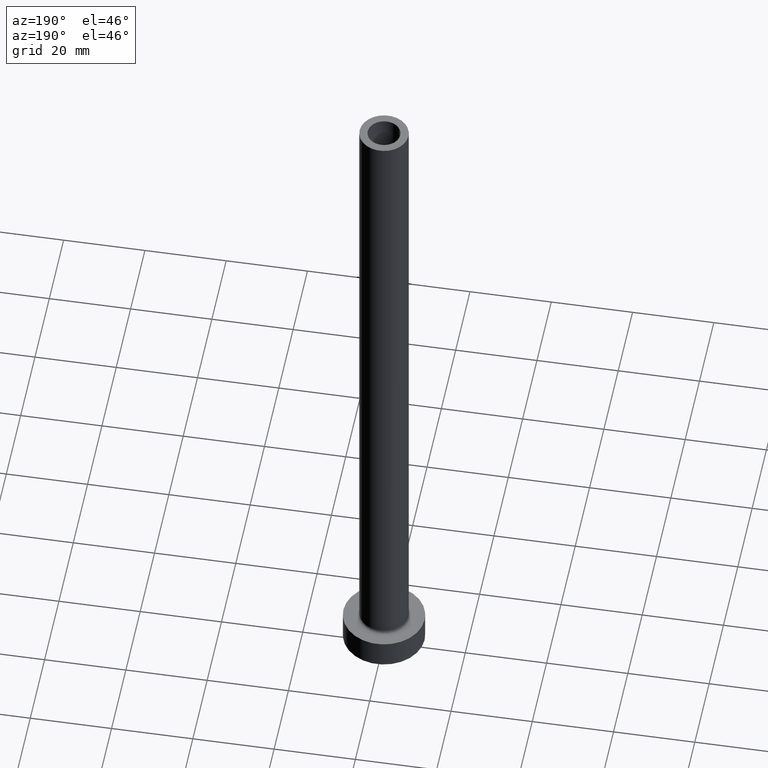
[diagram: clean part render]
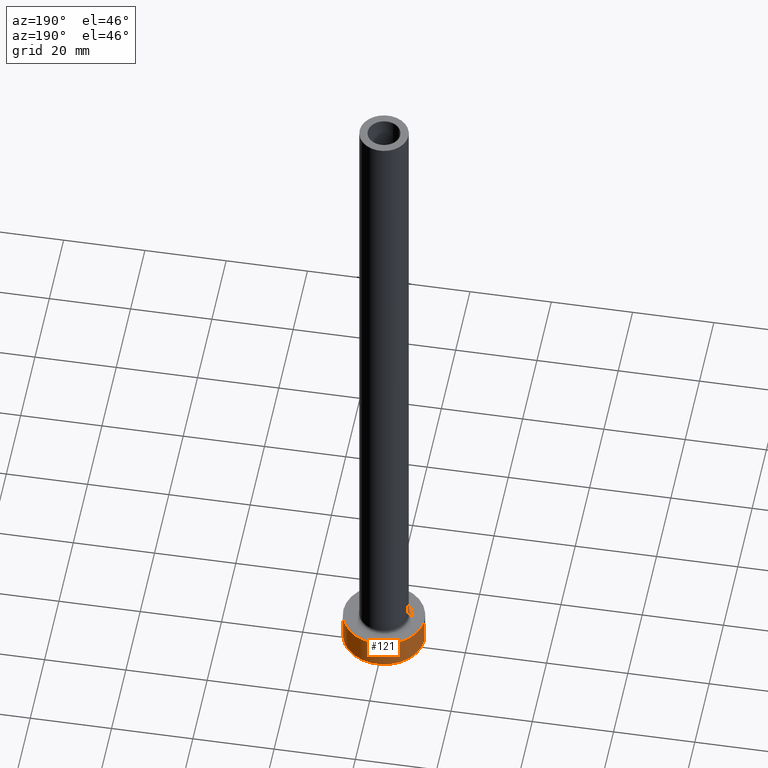
[diagram: same view with one face highlighted and labeled with its STEP entity id]
A machine part, auxiliary view. The second image highlights one B-rep face of the part: STEP entity #121.
In plain terms, the highlighted cylindrical surface (partial cylindrical patch) has radius 10 mm, axis along (-0, -0, -1).
Its self-contained STEP definition (entity closure, byte-faithful):
#2 = DIRECTION ( 'NONE',  ( 0.000000000000000000, 0.000000000000000000, 1.000000000000000000 ) ) ;
#6 = VECTOR ( 'NONE', #369, 1000.000000000000000 ) ;
#20 = AXIS2_PLACEMENT_3D ( 'NONE', #142, #222, #297 ) ;
#38 = CARTESIAN_POINT ( 'NONE',  ( 0.000000000000000000, 0.000000000000000000, 7.000000000000000000 ) ) ;
#40 = CYLINDRICAL_SURFACE ( 'NONE', #323, 10.00000000000000000 ) ;
#52 = EDGE_CURVE ( 'NONE', #348, #226, #326, .T. ) ;
#84 = ORIENTED_EDGE ( 'NONE', *, *, #52, .F. ) ;
#87 = LINE ( 'NONE', #91, #122 ) ;
#91 = CARTESIAN_POINT ( 'NONE',  ( -10.00000000000000000, 0.000000000000000000, 7.000000000000000000 ) ) ;
#93 = CARTESIAN_POINT ( 'NONE',  ( 10.00000000000000000, 1.224646799147353256E-15, 7.000000000000000000 ) ) ;
#121 = ADVANCED_FACE ( 'NONE', ( #364 ), #40, .T. ) ;
#122 = VECTOR ( 'NONE', #229, 1000.000000000000000 ) ;
#142 = CARTESIAN_POINT ( 'NONE',  ( 0.000000000000000000, 0.000000000000000000, 7.000000000000000000 ) ) ;
#171 = EDGE_CURVE ( 'NONE', #226, #274, #87, .T. ) ;
#200 = ORIENTED_EDGE ( 'NONE', *, *, #365, .T. ) ;
#219 = DIRECTION ( 'NONE',  ( -1.000000000000000000, 0.000000000000000000, 0.000000000000000000 ) ) ;
#222 = DIRECTION ( 'NONE',  ( 0.000000000000000000, 0.000000000000000000, 1.000000000000000000 ) ) ;
#226 = VERTEX_POINT ( 'NONE', #414 ) ;
#229 = DIRECTION ( 'NONE',  ( -0.000000000000000000, -0.000000000000000000, -1.000000000000000000 ) ) ;
#247 = CARTESIAN_POINT ( 'NONE',  ( 0.000000000000000000, 0.000000000000000000, 0.000000000000000000 ) ) ;
#254 = DIRECTION ( 'NONE',  ( -0.000000000000000000, -0.000000000000000000, -1.000000000000000000 ) ) ;
#259 = CARTESIAN_POINT ( 'NONE',  ( 10.00000000000000000, 1.224646799147353256E-15, 0.000000000000000000 ) ) ;
#263 = ORIENTED_EDGE ( 'NONE', *, *, #171, .F. ) ;
#269 = CARTESIAN_POINT ( 'NONE',  ( 10.00000000000000000, 1.224646799147353256E-15, 7.000000000000000000 ) ) ;
#274 = VERTEX_POINT ( 'NONE', #347 ) ;
#297 = DIRECTION ( 'NONE',  ( 1.000000000000000000, 0.000000000000000000, 0.000000000000000000 ) ) ;
#312 = EDGE_CURVE ( 'NONE', #390, #274, #425, .T. ) ;
#323 = AXIS2_PLACEMENT_3D ( 'NONE', #38, #254, #219 ) ;
#326 = CIRCLE ( 'NONE', #20, 10.00000000000000000 ) ;
#331 = DIRECTION ( 'NONE',  ( 1.000000000000000000, 0.000000000000000000, 0.000000000000000000 ) ) ;
#346 = EDGE_LOOP ( 'NONE', ( #84, #200, #450, #263 ) ) ;
#347 = CARTESIAN_POINT ( 'NONE',  ( -10.00000000000000000, 0.000000000000000000, 0.000000000000000000 ) ) ;
#348 = VERTEX_POINT ( 'NONE', #269 ) ;
#364 = FACE_OUTER_BOUND ( 'NONE', #346, .T. ) ;
#365 = EDGE_CURVE ( 'NONE', #348, #390, #367, .T. ) ;
#367 = LINE ( 'NONE', #93, #6 ) ;
#369 = DIRECTION ( 'NONE',  ( -0.000000000000000000, -0.000000000000000000, -1.000000000000000000 ) ) ;
#390 = VERTEX_POINT ( 'NONE', #259 ) ;
#392 = AXIS2_PLACEMENT_3D ( 'NONE', #247, #2, #331 ) ;
#414 = CARTESIAN_POINT ( 'NONE',  ( -10.00000000000000000, 0.000000000000000000, 7.000000000000000000 ) ) ;
#425 = CIRCLE ( 'NONE', #392, 10.00000000000000000 ) ;
#450 = ORIENTED_EDGE ( 'NONE', *, *, #312, .T. ) ;